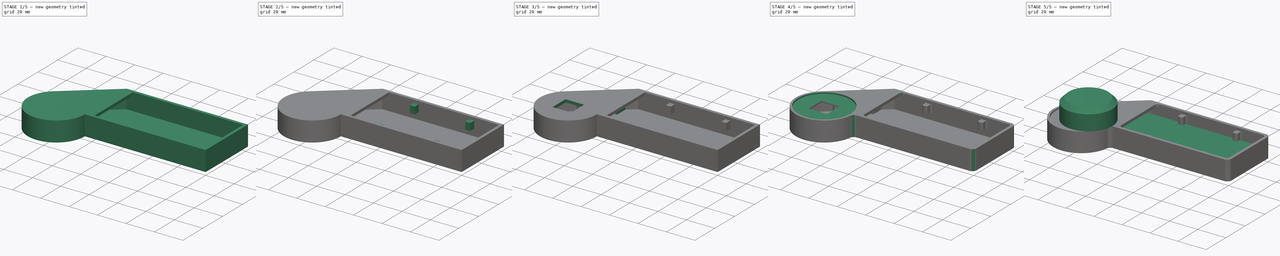
[diagram: build sequence overview — one tinted view per stage of 5, left to right]
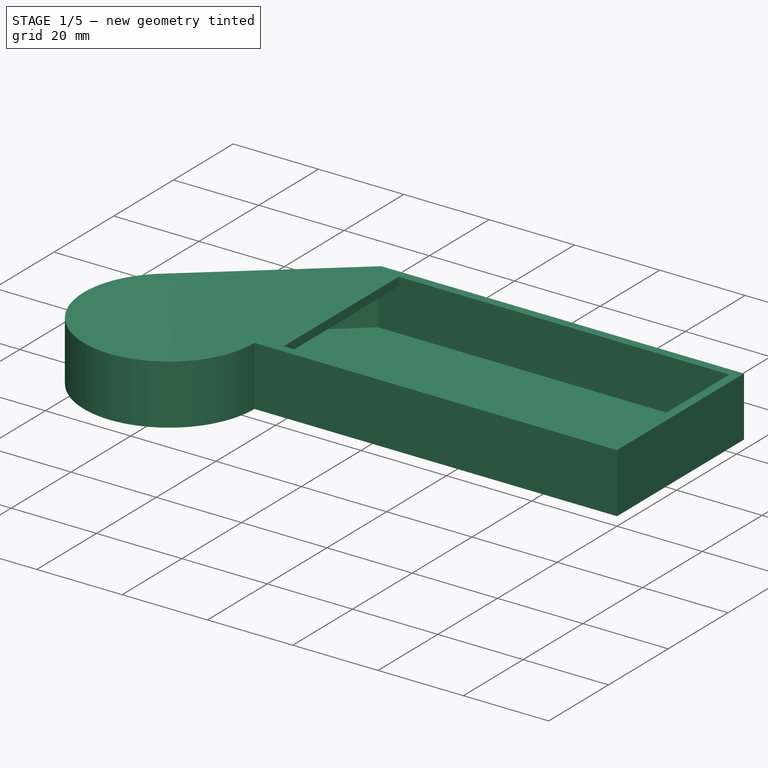
[diagram: stage 1 of 5 — iso view after this stage's code; geometry added in this stage tinted green]
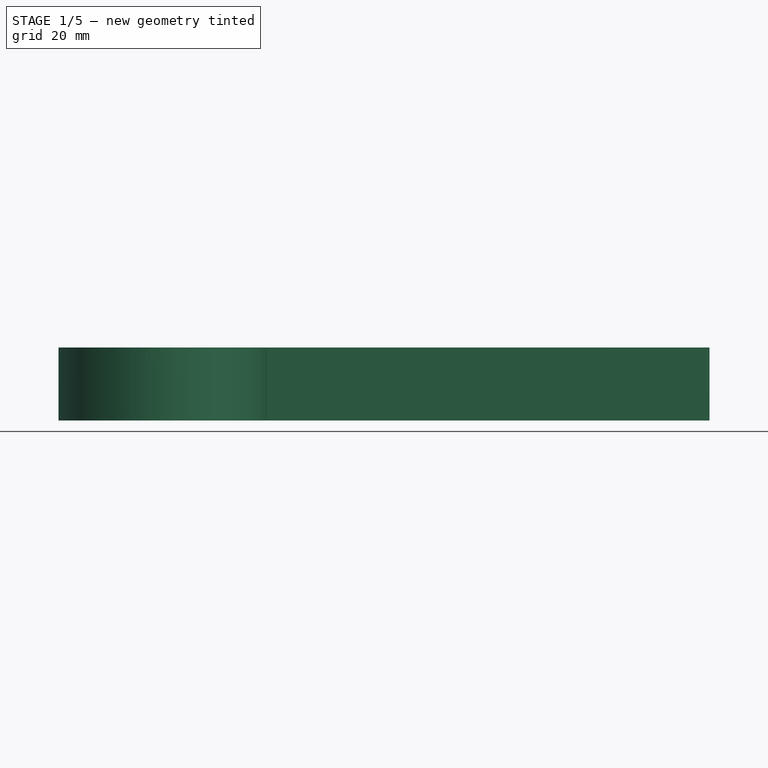
[diagram: stage 1 of 5 — front view after this stage's code; geometry added in this stage tinted green]
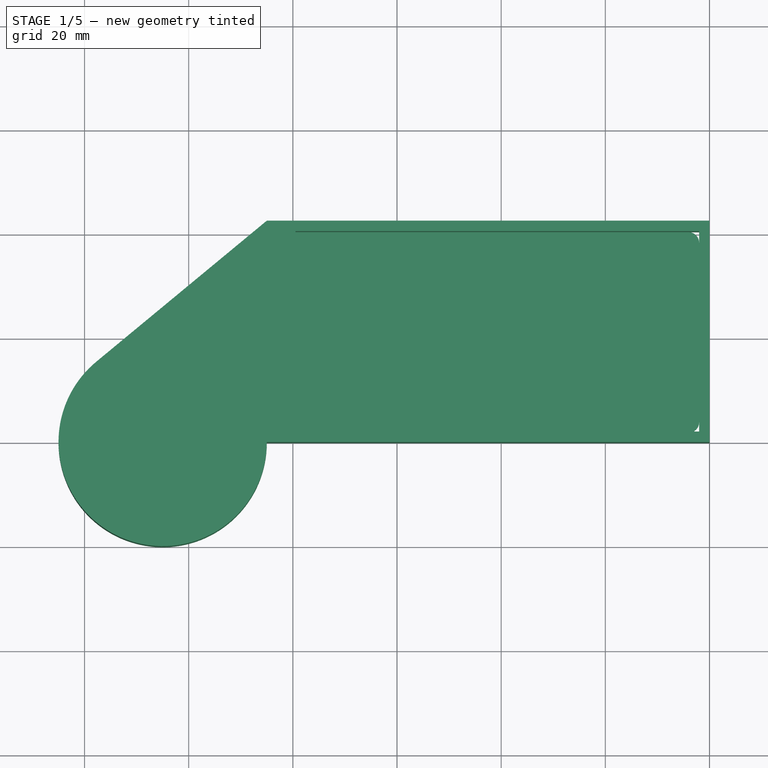
[diagram: stage 1 of 5 — top view after this stage's code; geometry added in this stage tinted green]
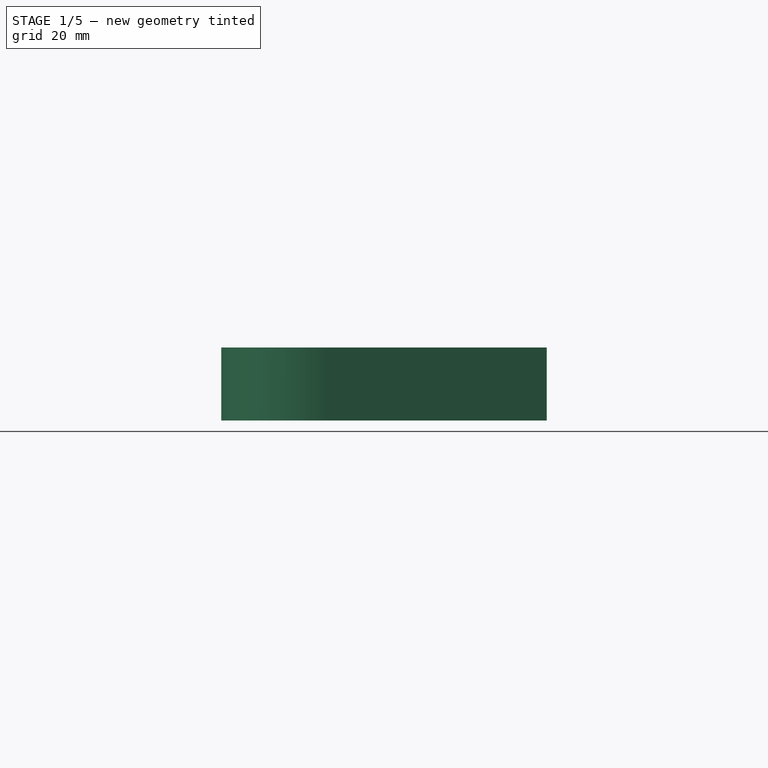
[diagram: stage 1 of 5 — right view after this stage's code; geometry added in this stage tinted green]
FCSTD DOCUMENT  (FreeCAD 0.18R4 (GitTag))
Label: solids
License: All rights reserved
LicenseURL: http://en.wikipedia.org/wiki/All_rights_reserved
objects: Part::Feature×17, Sketcher::SketchObject×16, PartDesign::Pad×10, App::Part×8, PartDesign::Fillet×7, PartDesign::Body×4, PartDesign::Pocket×4, App::DocumentObjectGroup×2, PartDesign::Hole×2, PartDesign::ShapeBinder×1, PartDesign::Chamfer×1
note: 78 computed .brp shape members not serialized (recipe doc carries the construction recipe); baked Part::Feature solids carry a one-line shape summary decoded from their .brp

FEATURE [Sketcher::SketchObject] Sketch  label="external-dimensions"
  sketch-geometry (5):
    g0: LineSegment StartX=0 StartY=0 StartZ=0 EndX=0 EndY=42.5 EndZ=0
    g1: LineSegment StartX=0 StartY=42.5 StartZ=0 EndX=-85 EndY=42.5 EndZ=0
    g2: LineSegment StartX=-85 StartY=42.5 StartZ=0 EndX=-117.748 EndY=15.4108 EndZ=0
    g3: LineSegment StartX=0 StartY=0 StartZ=0 EndX=-85 EndY=8.2e-15 EndZ=0
    g4: ArcOfCircle CenterX=-105 CenterY=3.87627e-05 CenterZ=0 NormalX=0 NormalY=0 NormalZ=1 AngleXU=0 Radius=20 StartAngle=2.26191 EndAngle=6.28318
  constraints (14):
    c: Coincident(g0,g-1)
    c: PointOnObject(g0,g-2)
    c: Horizontal(g1)
    c: Coincident(g2,g1)
    c: Coincident(g3,g0)
    c: PointOnObject(g3,g-1)
    c: Tangent(g2,g4) = -1.5708
    c: DistanceY(g0,g0) = 42.5
    c: Coincident(g1,g0)
    c: Radius(g4) = 20
    c: DistanceX(g3,g3) = 85
    c: Coincident(g3,g4)
    c: DistanceX(g4,g0) = 105
    c: Equal(g1,g3)
FEATURE [PartDesign::Pad] Pad
  Length = 14
  Length2 = 100
  Profile = -> Sketch
  Type = 0
FEATURE [PartDesign::Body] Body001  label="pcb"
  Group = -> [Sketch009,Pad001]
  Origin = -> Origin001
  Tip = -> Pad001
FEATURE [Sketcher::SketchObject] Sketch012  label="external-dim-lid"
  MapMode = 5
  Placement = pos=(0,0,0) rot=(1,0,0;3.14159rad)
  sketch-geometry (6):
    g0: ArcOfCircle CenterX=-105 CenterY=0 CenterZ=0 NormalX=0 NormalY=0 NormalZ=1 AngleXU=0 Radius=18 StartAngle=0 EndAngle=4.01426
    g1: LineSegment StartX=-84.28 StartY=-40.5 StartZ=0 EndX=-2 EndY=-40.5 EndZ=0
    g2: LineSegment StartX=-2 StartY=-2 StartZ=0 EndX=-2 EndY=-40.5 EndZ=0
    g3: LineSegment StartX=-2 StartY=-2 StartZ=0 EndX=-87 EndY=-2 EndZ=0
    g4: LineSegment StartX=-87 StartY=-2 StartZ=0 EndX=-87 EndY=0 EndZ=0
    g5: LineSegment StartX=-116.57 StartY=-13.7888 StartZ=0 EndX=-84.28 EndY=-40.5 EndZ=0
  constraints (19):
    c: PointOnObject(g0,g-1)
    c: Horizontal(g1)
    c: Vertical(g2)
    c: DistanceY(g2,g-1) = 40.5
    c: Radius(g0) = 18
    c: DistanceX(g0,g-1) = 105
    c: Coincident(g1,g2)
    c: DistanceX(g2,g-1) = 2
    c: DistanceY(g2,g-1) = 2
    c: Coincident(g3,g2)
    c: Horizontal(g3)
    c: Coincident(g4,g3)
    c: Coincident(g4,g0)
    c: Vertical(g4)
    c: DistanceY(g4,g4) = 2
    c: Coincident(g5,g0)
    c: Coincident(g5,g1)
    c: DistanceX(g1,g1) = 82.28
    c: Angle(g0) = 4.01426
FEATURE [PartDesign::Pad] Pad002
  Length = 2
  Length2 = 100
  Placement = pos=(0,0,0) rot=(1,0,0;3.14159rad)
  Profile = -> Sketch012
  Reversed = true
  Type = 0
FEATURE [PartDesign::Body] Body003  label="knob"
  Group = -> [CopyPocket008,Sketch017,Pad003,Chamfer]
  Origin = -> Origin003
  Placement = pos=(0,0,0.5) rot=(0,0,1;0rad)
  Tip = -> Chamfer
FEATURE [Part::Feature] Part__Feature017  label="kc_001"
  Placement = pos=(-19.55,1.46,17.3) rot=(1,0,0;1.5708rad)
  shape: bbox 18.17 x 18.13 x 12.8 mm, 52 faces (baked)
FEATURE [Part::Feature] Part__Feature032  label="kc_002"
  Placement = pos=(-39.05,1.46,17.3) rot=(1,0,0;1.5708rad)
  shape: bbox 18.17 x 18.13 x 12.8 mm, 52 faces (baked)
FEATURE [Part::Feature] Part__Feature033  label="kc_003"
  Placement = pos=(-58.55,1.46,17.3) rot=(1,0,0;1.5708rad)
  shape: bbox 18.17 x 18.13 x 12.8 mm, 52 faces (baked)
FEATURE [Part::Feature] Part__Feature034  label="kc_004"
  Placement = pos=(-78.05,1.46,17.3) rot=(1,0,0;1.5708rad)
  shape: bbox 18.17 x 18.13 x 12.8 mm, 52 faces (baked)
FEATURE [Part::Feature] Part__Feature035  label="kc_005"
  Placement = pos=(-19.55,20.96,17.3) rot=(1,0,0;1.5708rad)
  shape: bbox 18.17 x 18.13 x 12.8 mm, 52 faces (baked)
FEATURE [Part::Feature] Part__Feature036  label="kc_006"
  Placement = pos=(-39.05,20.96,17.3) rot=(1,0,0;1.5708rad)
  shape: bbox 18.17 x 18.13 x 12.8 mm, 52 faces (baked)
FEATURE [Part::Feature] Part__Feature037  label="kc_007"
  Placement = pos=(-58.55,20.96,17.3) rot=(1,0,0;1.5708rad)
  shape: bbox 18.17 x 18.13 x 12.8 mm, 52 faces (baked)
FEATURE [Part::Feature] Part__Feature038  label="kc_008"
  Placement = pos=(-78.05,20.96,17.3) rot=(1,0,0;1.5708rad)
  shape: bbox 18.17 x 18.13 x 12.8 mm, 52 faces (baked)
FEATURE [App::DocumentObjectGroup] Group001  label="keycaps"
  Group = -> [Part__Feature017,Part__Feature032,Part__Feature033,Part__Feature034,Part__Feature035,Part__Feature036,Part__Feature037,Part__Feature038]
FEATURE [Part::Feature] Part__Feature039  label="cherry_mx_01"
  Placement = pos=(-10.5074,10.486,12.8) rot=(1,0,0;1.5708rad)
  shape: bbox 15.64 x 16.33 x 17.85 mm, 92 faces (baked)
FEATURE [App::Part] ASSEMBLY  label="sw_001"
  Group = -> [Part__Feature039]
  Origin = -> Origin012
FEATURE [Part::Feature] Part__Feature040  label="cherry_mx_002"
  Placement = pos=(-10.5074,29.986,12.8) rot=(1,0,0;1.5708rad)
  shape: bbox 15.64 x 16.33 x 17.85 mm, 92 faces (baked)
FEATURE [App::Part] ASSEMBLY001  label="sw_002"
  Group = -> [Part__Feature040]
  Origin = -> Origin013
FEATURE [Part::Feature] Part__Feature041  label="cherry_mx_003"
  Placement = pos=(-30.0074,10.486,12.8) rot=(1,0,0;1.5708rad)
  shape: bbox 15.64 x 16.33 x 17.85 mm, 92 faces (baked)
FEATURE [App::Part] ASSEMBLY002  label="sw_003"
  Group = -> [Part__Feature041]
  Origin = -> Origin014
FEATURE [Part::Feature] Part__Feature042  label="cherry_mx_004"
  Placement = pos=(-49.5074,10.486,12.8) rot=(1,0,0;1.5708rad)
  shape: bbox 15.64 x 16.33 x 17.85 mm, 92 faces (baked)
FEATURE [App::Part] ASSEMBLY003  label="sw_004"
  Group = -> [Part__Feature042]
  Origin = -> Origin015
FEATURE [Part::Feature] Part__Feature043  label="cherry_mx_005"
  Placement = pos=(-69.0074,10.486,12.8) rot=(1,0,0;1.5708rad)
  shape: bbox 15.64 x 16.33 x 17.85 mm, 92 faces (baked)
FEATURE [App::Part] ASSEMBLY004  label="sw_005"
  Group = -> [Part__Feature043]
  Origin = -> Origin016
FEATURE [Part::Feature] Part__Feature044  label="cherry_mx_006"
  Placement = pos=(-30.0074,29.986,12.8) rot=(1,0,0;1.5708rad)
  shape: bbox 15.64 x 16.33 x 17.85 mm, 92 faces (baked)
FEATURE [App::Part] ASSEMBLY005  label="sw_006"
  Group = -> [Part__Feature044]
  Origin = -> Origin017
FEATURE [Part::Feature] Part__Feature045  label="cherry_mx_007"
  Placement = pos=(-49.5074,29.986,12.8) rot=(1,0,0;1.5708rad)
  shape: bbox 15.64 x 16.33 x 17.85 mm, 92 faces (baked)
FEATURE [App::Part] ASSEMBLY006  label="sw_007"
  Group = -> [Part__Feature045]
  Origin = -> Origin018
FEATURE [Part::Feature] Part__Feature046  label="cherry_mx_008"
  Placement = pos=(-69.0074,29.986,12.8) rot=(1,0,0;1.5708rad)
  shape: bbox 15.64 x 16.33 x 17.85 mm, 92 faces (baked)
FEATURE [App::Part] ASSEMBLY007  label="sw_008"
  Group = -> [Part__Feature046]
  Origin = -> Origin019
FEATURE [App::DocumentObjectGroup] Group  label="switches"
  Group = -> [ASSEMBLY,ASSEMBLY001,ASSEMBLY002,ASSEMBLY003,ASSEMBLY004,ASSEMBLY005,ASSEMBLY006,ASSEMBLY007]
FEATURE [Sketcher::SketchObject] Sketch019  label="bottom-pocket"
  MapMode = 5
  Placement = pos=(0,0,0) rot=(1,0,0;3.14159rad)
  Support = -> [Pad]
  sketch-geometry (6):
    g0: LineSegment StartX=-116.57 StartY=-13.7888 StartZ=0 EndX=-84.28 EndY=-40.5 EndZ=0
    g1: LineSegment StartX=-84.28 StartY=-40.5 StartZ=0 EndX=-2 EndY=-40.5 EndZ=0
    g2: LineSegment StartX=-2 StartY=-40.5 StartZ=0 EndX=-2 EndY=-2 EndZ=0
    g3: LineSegment StartX=-2 StartY=-2 StartZ=0 EndX=-87 EndY=-2 EndZ=0
    g4: LineSegment StartX=-87 StartY=-2 StartZ=0 EndX=-87 EndY=0 EndZ=0
    g5: ArcOfCircle CenterX=-105 CenterY=0 CenterZ=0 NormalX=0 NormalY=0 NormalZ=1 AngleXU=0 Radius=18 StartAngle=0 EndAngle=4.01426
  constraints (19):
    c: Horizontal(g1)
    c: Coincident(g2,g1)
    c: Vertical(g2)
    c: Coincident(g3,g2)
    c: Horizontal(g3)
    c: Coincident(g4,g3)
    c: DistanceY(g2,g2) = 38.5
    c: DistanceX(g2,g-1) = 2
    c: DistanceY(g2,g-1) = 2
    c: Vertical(g4)
    c: Coincident(g1,g0)
    c: DistanceX(g1,g1) = 82.28
    c: Coincident(g5,g4)
    c: Coincident(g5,g0)
    c: Radius(g5) = 18
    c: DistanceX(g3,g3) = 85
    c: DistanceY(g4,g4) = 2
    c: PointOnObject(g5,g-1)
    c: Angle(g5) = 4.01426
FEATURE [PartDesign::Pocket] Pocket
  BaseFeature = -> Pad
  Length = 12
  Length2 = 100
  Profile = -> Sketch019
  Type = 0
FEATURE [Sketcher::SketchObject] Sketch020  label="top-pocket"
  MapMode = 5
  Placement = pos=(0,0,14) rot=(0,0,1;0rad)
  Support = -> [Pocket]
  sketch-geometry (4):
    g0: LineSegment StartX=-79.5 StartY=40.5 StartZ=0 EndX=-2 EndY=40.5 EndZ=0
    g1: LineSegment StartX=-2 StartY=40.5 StartZ=0 EndX=-2 EndY=2 EndZ=0
    g2: LineSegment StartX=-2 StartY=2 StartZ=0 EndX=-79.5 EndY=2 EndZ=0
    g3: LineSegment StartX=-79.5 StartY=2 StartZ=0 EndX=-79.5 EndY=40.5 EndZ=0
  constraints (12):
    c: Coincident(g0,g1)
    c: Coincident(g1,g2)
    c: Coincident(g2,g3)
    c: Coincident(g3,g0)
    c: Horizontal(g0)
    c: Horizontal(g2)
    c: Vertical(g1)
    c: Vertical(g3)
    c: DistanceY(g1,g1) = 38.5
    c: DistanceY(g-1,g1) = 2
    c: DistanceX(g1,g-1) = 2
    c: DistanceX(g0,g0) = 77.5
FEATURE [PartDesign::Pocket] Pocket010
  BaseFeature = -> Pocket
  Length = 2
  Length2 = 100
  Profile = -> Sketch020
  Type = 0
FEATURE [PartDesign::Body] Body  label="enclosure"
  Group = -> [Sketch,Pad,Sketch019,Pocket,Sketch020,Pocket010,Sketch021,Pad004,Sketch022,Pad005,Sketch023,Pad006,Sketch024,Pad007,Sketch025,Pad008,Sketch026,Pad009,Sketch027,Pocket011,Sketch028,Hole,Sketch029,Hole001,Sketch030,Pocket012,Fillet,Fillet001,Fillet002,Fillet003,Fillet004,Fillet005]
  Origin = -> Origin
  Tip = -> Fillet005
FEATURE [PartDesign::Fillet] Fillet006
  Base = -> Pad002 [Edge1,Edge14,Edge11]
  BaseFeature = -> Pad002
  Placement = pos=(0,0,0) rot=(1,0,0;3.14159rad)
  Radius = 2
FEATURE [PartDesign::Body] Body002  label="lid"
  Group = -> [Sketch012,Pad002,Fillet006]
  Origin = -> Origin002
  Tip = -> Fillet006
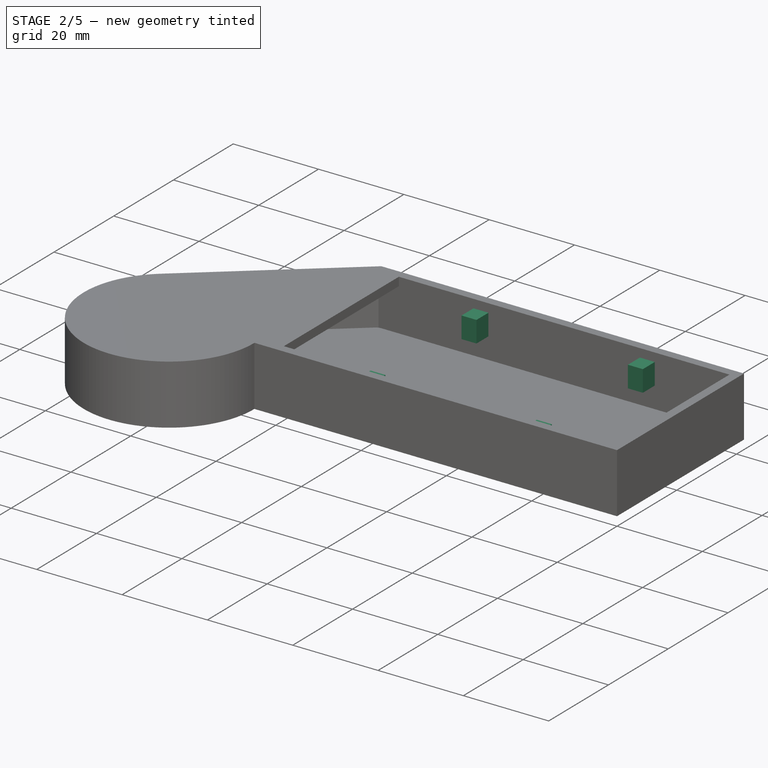
[diagram: stage 2 of 5 — iso view after this stage's code; geometry added in this stage tinted green]
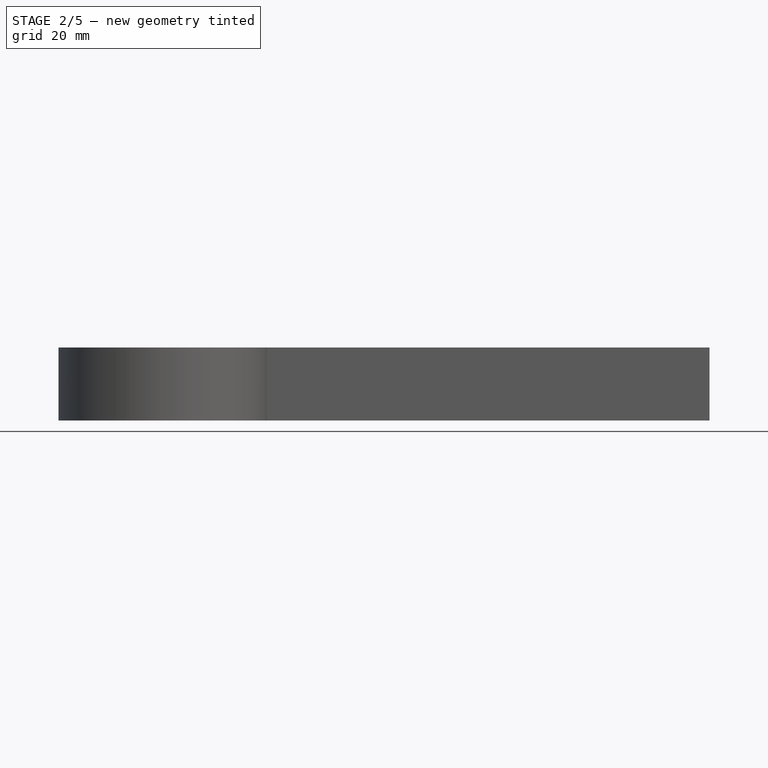
[diagram: stage 2 of 5 — front view after this stage's code; geometry added in this stage tinted green]
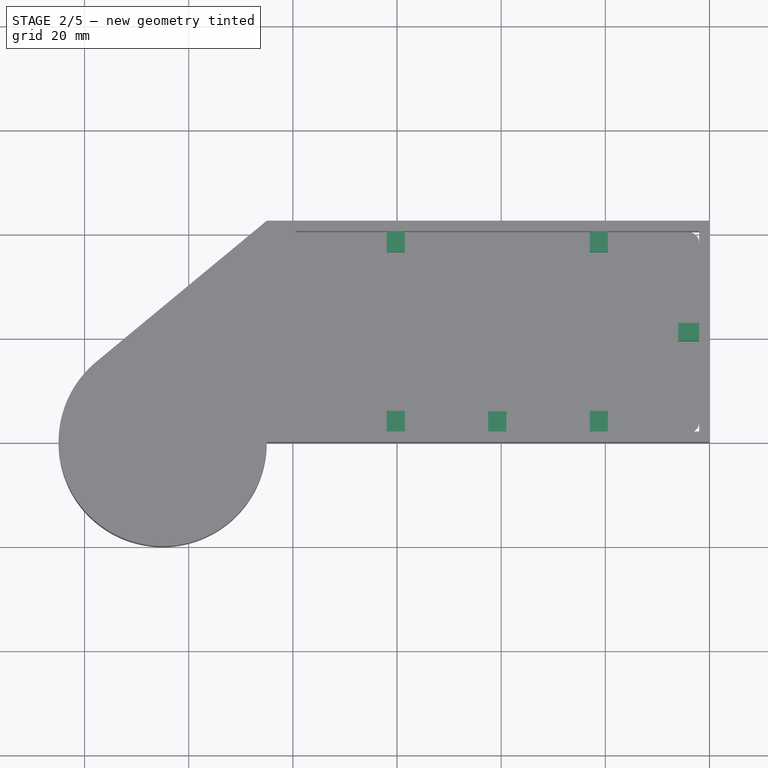
[diagram: stage 2 of 5 — top view after this stage's code; geometry added in this stage tinted green]
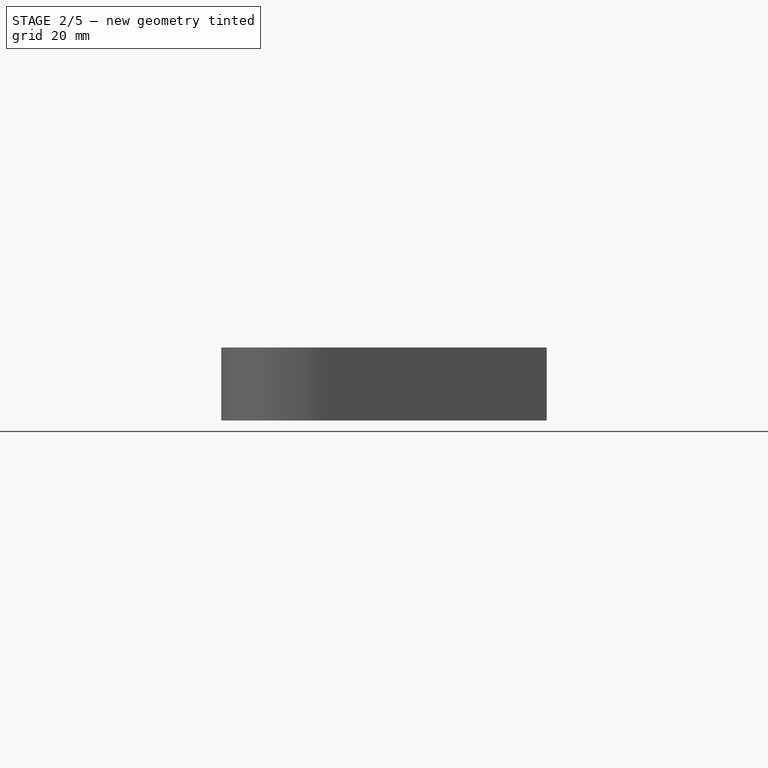
[diagram: stage 2 of 5 — right view after this stage's code; geometry added in this stage tinted green]
FEATURE [Sketcher::SketchObject] Sketch021  label="supports-north"
  MapMode = 5
  Placement = pos=(0,40.5,0) rot=(1,0,0;1.5708rad)
  Support = -> [Pocket010]
  sketch-geometry (8):
    g0: LineSegment StartX=-23 StartY=12 StartZ=0 EndX=-19.5 EndY=12 EndZ=0
    g1: LineSegment StartX=-19.5 StartY=12 StartZ=0 EndX=-19.5 EndY=7 EndZ=0
    g2: LineSegment StartX=-19.5 StartY=7 StartZ=0 EndX=-23 EndY=7 EndZ=0
    g3: LineSegment StartX=-23 StartY=7 StartZ=0 EndX=-23 EndY=12 EndZ=0
    g4: LineSegment StartX=-62 StartY=12 StartZ=0 EndX=-58.5 EndY=12 EndZ=0
    g5: LineSegment StartX=-58.5 StartY=12 StartZ=0 EndX=-58.5 EndY=7 EndZ=0
    g6: LineSegment StartX=-58.5 StartY=7 StartZ=0 EndX=-62 EndY=7 EndZ=0
    g7: LineSegment StartX=-62 StartY=7 StartZ=0 EndX=-62 EndY=12 EndZ=0
  constraints (24):
    c: Coincident(g0,g1)
    c: Coincident(g1,g2)
    c: Coincident(g2,g3)
    c: Coincident(g3,g0)
    c: Horizontal(g0)
    c: Horizontal(g2)
    c: Vertical(g1)
    c: Vertical(g3)
    c: Coincident(g4,g5)
    c: Coincident(g5,g6)
    c: Coincident(g6,g7)
    c: Coincident(g7,g4)
    c: Horizontal(g4)
    c: Horizontal(g6)
    c: Vertical(g5)
    c: Vertical(g7)
    c: Equal(g1,g5)
    c: Equal(g6,g2)
    c: DistanceY(g1,g1) = 5
    c: DistanceX(g2,g2) = 3.5
    c: DistanceX(g1,g-1) = 19.5
    c: DistanceX(g5,g-1) = 58.5
    c: DistanceY(g-1,g1) = 7
    c: DistanceY(g-1,g5) = 7
FEATURE [PartDesign::Pad] Pad004
  BaseFeature = -> Pocket010
  Length = 4
  Length2 = 100
  Profile = -> Sketch021
  Type = 0
FEATURE [Sketcher::SketchObject] Sketch022  label="supports-south"
  MapMode = 5
  Placement = pos=(0,2,0) rot=(0,0.707107,0.707107;3.14159rad)
  Support = -> [Pad004]
  sketch-geometry (12):
    g0: LineSegment StartX=19.5 StartY=12 StartZ=0 EndX=23 EndY=12 EndZ=0
    g1: LineSegment StartX=23 StartY=12 StartZ=0 EndX=23 EndY=7 EndZ=0
    g2: LineSegment StartX=23 StartY=7 StartZ=0 EndX=19.5 EndY=7 EndZ=0
    g3: LineSegment StartX=19.5 StartY=7 StartZ=0 EndX=19.5 EndY=12 EndZ=0
    g4: LineSegment StartX=58.5 StartY=12 StartZ=0 EndX=62 EndY=12 EndZ=0
    g5: LineSegment StartX=62 StartY=12 StartZ=0 EndX=62 EndY=7 EndZ=0
    g6: LineSegment StartX=62 StartY=7 StartZ=0 EndX=58.5 EndY=7 EndZ=0
    g7: LineSegment StartX=58.5 StartY=7 StartZ=0 EndX=58.5 EndY=12 EndZ=0
    g8: LineSegment StartX=39 StartY=7 StartZ=0 EndX=42.5 EndY=7 EndZ=0
    g9: LineSegment StartX=42.5 StartY=7 StartZ=0 EndX=42.5 EndY=2 EndZ=0
    g10: LineSegment StartX=42.5 StartY=2 StartZ=0 EndX=39 EndY=2 EndZ=0
    g11: LineSegment StartX=39 StartY=2 StartZ=0 EndX=39 EndY=7 EndZ=0
  constraints (36):
    c: Coincident(g0,g1)
    c: Coincident(g1,g2)
    c: Coincident(g2,g3)
    c: Coincident(g3,g0)
    c: Horizontal(g0)
    c: Horizontal(g2)
    c: Vertical(g1)
    c: Vertical(g3)
    c: Coincident(g4,g5)
    c: Coincident(g5,g6)
    c: Coincident(g6,g7)
    c: Coincident(g7,g4)
    c: Horizontal(g4)
    c: Horizontal(g6)
    c: Vertical(g5)
    c: Vertical(g7)
    c: Coincident(g8,g9)
    c: Coincident(g9,g10)
    c: Coincident(g10,g11)
    c: Coincident(g11,g8)
    c: Horizontal(g8)
    c: Horizontal(g10)
    c: Vertical(g9)
    c: Vertical(g11)
    c: Equal(g3,g11)
    c: Equal(g11,g7)
    c: Equal(g2,g10)
    c: Equal(g10,g6)
    c: DistanceY(g3,g3) = 5
    c: DistanceX(g2,g2) = 3.5
    c: DistanceX(g-1,g2) = 19.5
    c: DistanceY(g-1,g2) = 7
    c: DistanceY(g-1,g10) = 2
    c: DistanceX(g-1,g10) = 39
    c: DistanceX(g-1,g6) = 58.5
    c: DistanceY(g6) = 7
FEATURE [PartDesign::Pad] Pad005
  BaseFeature = -> Pad004
  Length = 4
  Length2 = 100
  Profile = -> Sketch022
  Type = 0
FEATURE [Sketcher::SketchObject] Sketch023  label="supports-east"
  MapMode = 5
  Placement = pos=(-2,0,0) rot=(0.57735,-0.57735,-0.57735;2.0944rad)
  Support = -> [Pad005]
  sketch-geometry (4):
    g0: LineSegment StartX=-23 StartY=7 StartZ=0 EndX=-19.5 EndY=7 EndZ=0
    g1: LineSegment StartX=-19.5 StartY=7 StartZ=0 EndX=-19.5 EndY=2 EndZ=0
    g2: LineSegment StartX=-19.5 StartY=2 StartZ=0 EndX=-23 EndY=2 EndZ=0
    g3: LineSegment StartX=-23 StartY=2 StartZ=0 EndX=-23 EndY=7 EndZ=0
  constraints (12):
    c: Coincident(g0,g1)
    c: Coincident(g1,g2)
    c: Coincident(g2,g3)
    c: Coincident(g3,g0)
    c: Horizontal(g0)
    c: Horizontal(g2)
    c: Vertical(g1)
    c: Vertical(g3)
    c: DistanceX(g2,g2) = 3.5
    c: DistanceY(g1,g1) = 5
    c: DistanceY(g-1,g1) = 2
    c: DistanceX(g1,g-1) = 19.5
FEATURE [PartDesign::Pad] Pad006
  BaseFeature = -> Pad005
  Length = 4
  Length2 = 100
  Profile = -> Sketch023
  Type = 0
FEATURE [Sketcher::SketchObject] Sketch024  label="supports-inside-pcb"
  MapMode = 5
  Placement = pos=(0,0,12) rot=(1,0,0;3.14159rad)
  Support = -> [Pad006]
  sketch-geometry (5):
    g0: Circle CenterX=-93 CenterY=0 CenterZ=0 NormalX=0 NormalY=0 NormalZ=1 AngleXU=0 Radius=2
    g1: Circle CenterX=-117 CenterY=0 CenterZ=0 NormalX=0 NormalY=0 NormalZ=1 AngleXU=0 Radius=2
    g2: Circle CenterX=-105 CenterY=-12 CenterZ=0 NormalX=0 NormalY=0 NormalZ=1 AngleXU=0 Radius=2
    g3: ArcOfCircle CenterX=-105 CenterY=0 CenterZ=0 NormalX=0 NormalY=0 NormalZ=1 AngleXU=0 Radius=18 StartAngle=0.429775 EndAngle=2.71182
    g4: LineSegment StartX=-121.363 StartY=7.5 StartZ=0 EndX=-88.6369 EndY=7.5 EndZ=0
  constraints (15):
    c: PointOnObject(g0,g-1)
    c: Equal(g2,g1)
    c: Equal(g1,g0)
    c: Coincident(g4,g3)
    c: Coincident(g4,g3)
    c: Horizontal(g4)
    c: Radius(g3) = 18
    c: DistanceY(g3,g3) = 7.5
    c: DistanceX(g3,g-1) = 105
    c: Symmetric(g0,g1,g3)
    c: PointOnObject(g3,g-1)
    c: Radius(g1) = 2
    c: DistanceX(g1,g3) = 12
    c: DistanceY(g2,g3) = 12
    c: Vertical(g2,g3)
FEATURE [PartDesign::Pad] Pad007
  BaseFeature = -> Pad006
  Length = 5
  Length2 = 100
  Profile = -> Sketch024
  Type = 0
FEATURE [Sketcher::SketchObject] Sketch025  label="support-lid-south"
  MapMode = 5
  Placement = pos=(0,0,7) rot=(1,0,0;3.14159rad)
  Support = -> [Pad007]
  sketch-geometry (2):
    g0: ArcOfCircle CenterX=-105 CenterY=0 CenterZ=0 NormalX=0 NormalY=0 NormalZ=1 AngleXU=0 Radius=18 StartAngle=0.80701 EndAngle=2.33458
    g1: LineSegment StartX=-117.45 StartY=13 StartZ=0 EndX=-92.5501 EndY=13 EndZ=0
  constraints (7):
    c: PointOnObject(g0,g-1)
    c: Coincident(g1,g0)
    c: Coincident(g1,g0)
    c: Horizontal(g1)
    c: Radius(g0) = 18
    c: DistanceX(g0,g-1) = 105
    c: DistanceY(g0,g0) = 13
FEATURE [PartDesign::Pad] Pad008
  BaseFeature = -> Pad007
  Length = 5
  Length2 = 100
  Profile = -> Sketch025
  Type = 0
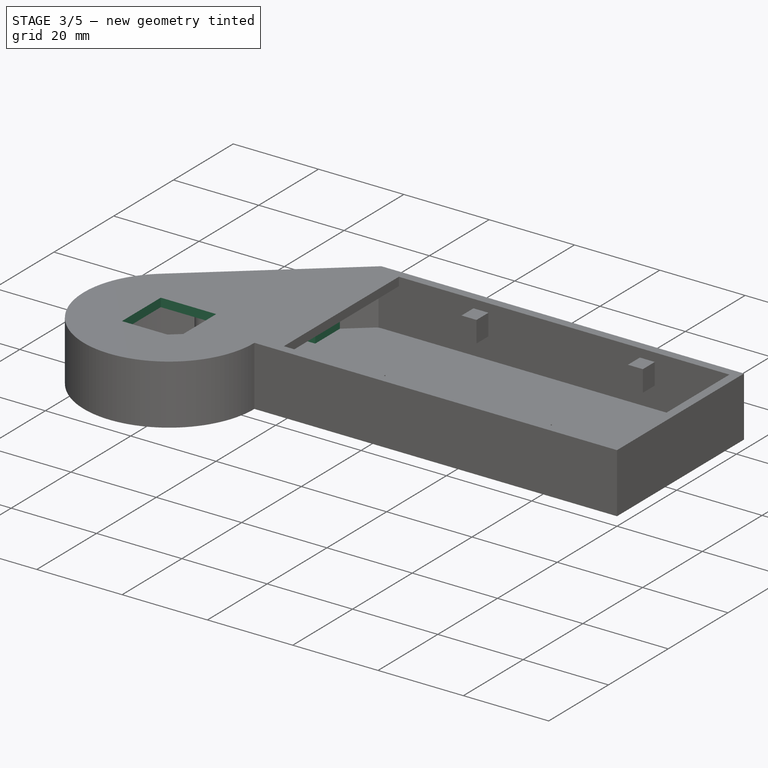
[diagram: stage 3 of 5 — iso view after this stage's code; geometry added in this stage tinted green]
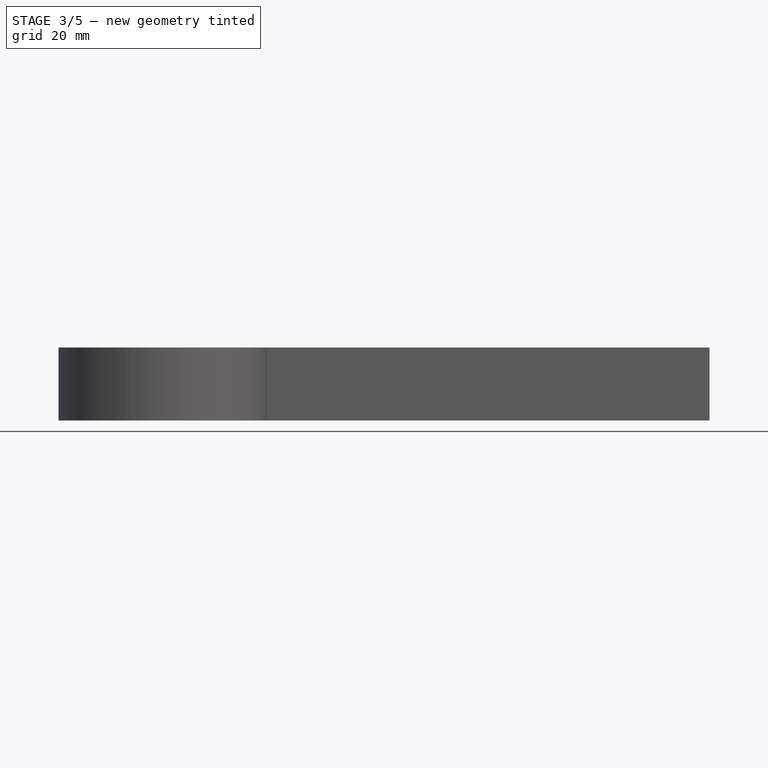
[diagram: stage 3 of 5 — front view after this stage's code; geometry added in this stage tinted green]
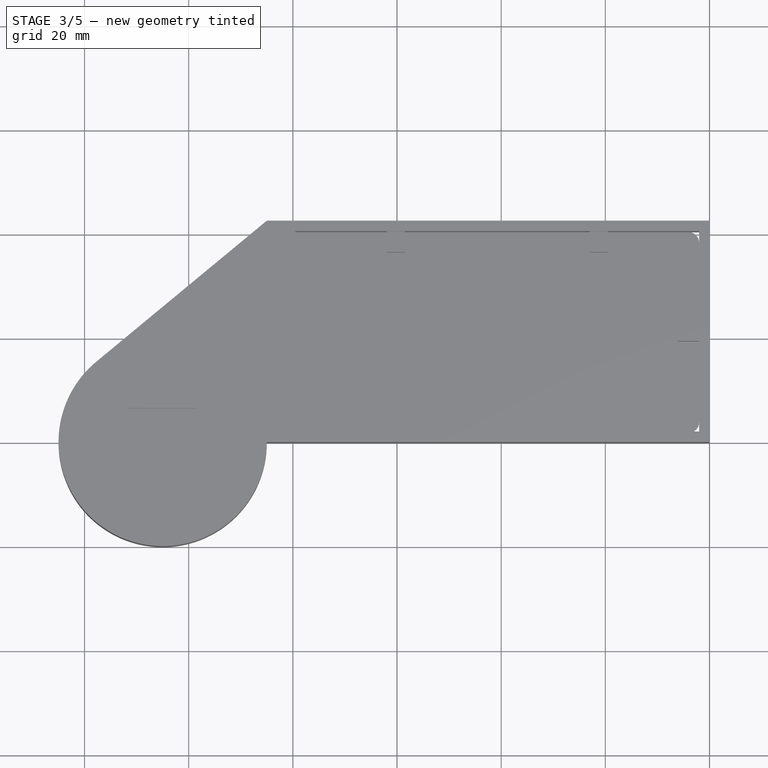
[diagram: stage 3 of 5 — top view after this stage's code; geometry added in this stage tinted green]
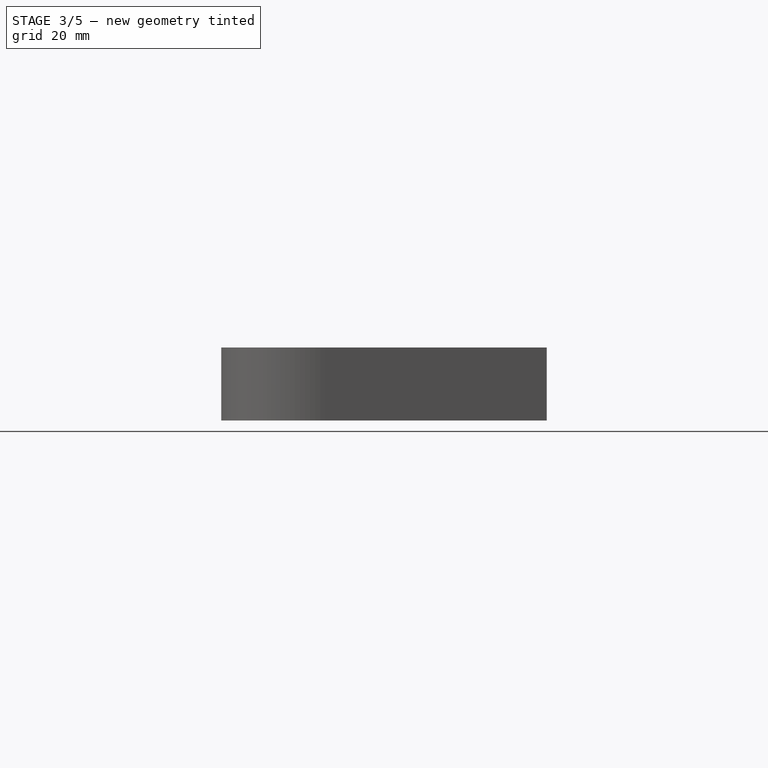
[diagram: stage 3 of 5 — right view after this stage's code; geometry added in this stage tinted green]
FEATURE [Sketcher::SketchObject] Sketch026  label="support-lid-north"
  MapMode = 5
  Placement = pos=(0,0,12) rot=(1,0,0;3.14159rad)
  Support = -> [Pad008]
  sketch-geometry (3):
    g0: LineSegment StartX=-100 StartY=-27.5 StartZ=0 EndX=-90 EndY=-27.5 EndZ=0
    g1: LineSegment StartX=-90 StartY=-27.5 StartZ=0 EndX=-90 EndY=-35.77 EndZ=0
    g2: LineSegment StartX=-90 StartY=-35.77 StartZ=0 EndX=-100 EndY=-27.5 EndZ=0
  constraints (9):
    c: Horizontal(g0)
    c: Coincident(g1,g0)
    c: Vertical(g1)
    c: Coincident(g2,g1)
    c: Coincident(g2,g0)
    c: DistanceX(g0,g0) = 10
    c: DistanceX(g0,g-1) = 90
    c: DistanceY(g0,g-1) = 27.5
    c: DistanceY(g1,g1) = 8.27
FEATURE [PartDesign::Pad] Pad009
  BaseFeature = -> Pad008
  Length = 10
  Length2 = 100
  Profile = -> Sketch026
  Type = 0
FEATURE [Sketcher::SketchObject] Sketch027
  MapMode = 5
  Placement = pos=(0,0,12) rot=(1,0,0;3.14159rad)
  Support = -> [Pad009]
  sketch-geometry (4):
    g0: LineSegment StartX=-111.5 StartY=6.5 StartZ=0 EndX=-98.5 EndY=6.5 EndZ=0
    g1: LineSegment StartX=-98.5 StartY=6.5 StartZ=0 EndX=-98.5 EndY=-6.5 EndZ=0
    g2: LineSegment StartX=-98.5 StartY=-6.5 StartZ=0 EndX=-111.5 EndY=-6.5 EndZ=0
    g3: LineSegment StartX=-111.5 StartY=-6.5 StartZ=0 EndX=-111.5 EndY=6.5 EndZ=0
  constraints (11):
    c: Coincident(g0,g1)
    c: Coincident(g1,g2)
    c: Coincident(g2,g3)
    c: Coincident(g3,g0)
    c: Horizontal(g0)
    c: Horizontal(g2)
    c: Vertical(g3)
    c: Equal(g1,g2)
    c: DistanceX(g2,g2) = 13
    c: Symmetric(g1,g0,g-1)
    c: DistanceX(g0,g-1) = 98.5
FEATURE [PartDesign::Pocket] Pocket011
  BaseFeature = -> Pad009
  Length = 2
  Length2 = 100
  Profile = -> Sketch027
  Type = 0
FEATURE [Sketcher::SketchObject] Sketch028
  MapMode = 5
  Placement = pos=(0,1.6e-15,7) rot=(1,0,0;3.14159rad)
  Support = -> [Pocket011]
  sketch-geometry (8):
    g0: Circle CenterX=-60.25 CenterY=-4 CenterZ=0 NormalX=0 NormalY=0 NormalZ=1 AngleXU=0 Radius=0.625
    g1: Circle CenterX=-21.25 CenterY=-4 CenterZ=0 NormalX=0 NormalY=0 NormalZ=1 AngleXU=0 Radius=0.625
    g2: Circle CenterX=-21.25 CenterY=-38.5 CenterZ=0 NormalX=0 NormalY=0 NormalZ=1 AngleXU=0 Radius=0.625
    g3: Circle CenterX=-60.25 CenterY=-38.5 CenterZ=0 NormalX=0 NormalY=0 NormalZ=1 AngleXU=0 Radius=0.625
    g4: Circle CenterX=-105 CenterY=-12 CenterZ=0 NormalX=0 NormalY=0 NormalZ=1 AngleXU=0 Radius=0.625
    g5: Circle CenterX=-93 CenterY=0 CenterZ=0 NormalX=0 NormalY=0 NormalZ=1 AngleXU=0 Radius=0.625
    g6: Circle CenterX=-117 CenterY=0 CenterZ=0 NormalX=0 NormalY=0 NormalZ=1 AngleXU=0 Radius=0.625
    g7: Circle CenterX=-105 CenterY=10 CenterZ=0 NormalX=0 NormalY=0 NormalZ=1 AngleXU=0 Radius=0.625
  constraints (24):
    c: Equal(g2,g1)
    c: Equal(g1,g0)
    c: Equal(g0,g3)
    c: Equal(g3,g4)
    c: Equal(g4,g6)
    c: Equal(g6,g5)
    c: Equal(g5,g7)
    c: Vertical(g2,g1)
    c: Horizontal(g2,g3)
    c: Vertical(g3,g0)
    c: Horizontal(g5,g6)
    c: DistanceX(g1,g-1) = 21.25
    c: DistanceX(g0,g-1) = 60.25
    c: PointOnObject(g6,g-1)
    c: DistanceX(g6,g5) = 24
    c: DistanceX(g5,g-1) = 93
    c: DistanceX(g7,g-1) = 105
    c: DistanceY(g1,g-1) = 4
    c: Horizontal(g0,g1)
    c: DistanceY(g2,g1) = 34.5
    c: Radius(g2) = 0.625
    c: Vertical(g4,g7)
    c: DistanceY(g4,g6) = 12
    c: DistanceY(g6,g7) = 10
FEATURE [PartDesign::Hole] Hole
  BaseFeature = -> Pocket011
  Depth = 4
  DepthType = 0
  Diameter = 1.4
  DrillPoint = 1
  DrillPointAngle = 118
  HoleCutCountersinkAngle = 90
  HoleCutDepth = 0
  HoleCutDiameter = 1.6
  HoleCutType = 0
  ModelActualThread = false
  Profile = -> Sketch028
  Tapered = false
  TaperedAngle = 90
  ThreadAngle = 60
  ThreadClass = 0
  ThreadCutOffInner = 0.0216506
  ThreadCutOffOuter = 0.0433013
  ThreadDirection = 1
  ThreadFit = 0
  ThreadPitch = 0.2
  ThreadSize = 4
  ThreadType = 2
  Threaded = true
FEATURE [Sketcher::SketchObject] Sketch029
  MapMode = 5
  Placement = pos=(0,0,2) rot=(1,0,0;3.14159rad)
  Support = -> [Hole]
  sketch-geometry (4):
    g0: Circle CenterX=-105 CenterY=15 CenterZ=0 NormalX=0 NormalY=0 NormalZ=1 AngleXU=0 Radius=0.625
    g1: Circle CenterX=-93 CenterY=-30 CenterZ=0 NormalX=0 NormalY=0 NormalZ=1 AngleXU=0 Radius=0.625
    g2: Circle CenterX=-40.75 CenterY=-4 CenterZ=0 NormalX=0 NormalY=0 NormalZ=1 AngleXU=0 Radius=0.625
    g3: Circle CenterX=-4 CenterY=-21.25 CenterZ=0 NormalX=0 NormalY=0 NormalZ=1 AngleXU=0 Radius=0.625
  constraints (12):
    c: Equal(g0,g1)
    c: Equal(g1,g2)
    c: Equal(g2,g3)
    c: DistanceX(g0,g-1) = 105
    c: DistanceY(g-1,g0) = 15
    c: DistanceX(g1,g-1) = 93
    c: DistanceY(g1,g-1) = 30
    c: DistanceY(g3,g-1) = 21.25
    c: DistanceX(g3,g-1) = 4
    c: DistanceY(g2,g-1) = 4
    c: DistanceX(g2,g-1) = 40.75
    c: Radius(g1) = 0.625
FEATURE [PartDesign::Hole] Hole001
  BaseFeature = -> Hole
  Depth = 4
  DepthType = 0
  Diameter = 1.4
  DrillPoint = 1
  DrillPointAngle = 118
  HoleCutCountersinkAngle = 90
  HoleCutDepth = 0
  HoleCutDiameter = 1.6
  HoleCutType = 0
  ModelActualThread = false
  Profile = -> Sketch029
  Tapered = false
  TaperedAngle = 90
  ThreadAngle = 60
  ThreadClass = 0
  ThreadCutOffInner = 0.0216506
  ThreadCutOffOuter = 0.0433013
  ThreadDirection = 1
  ThreadFit = 0
  ThreadPitch = 0.2
  ThreadSize = 4
  ThreadType = 2
  Threaded = true
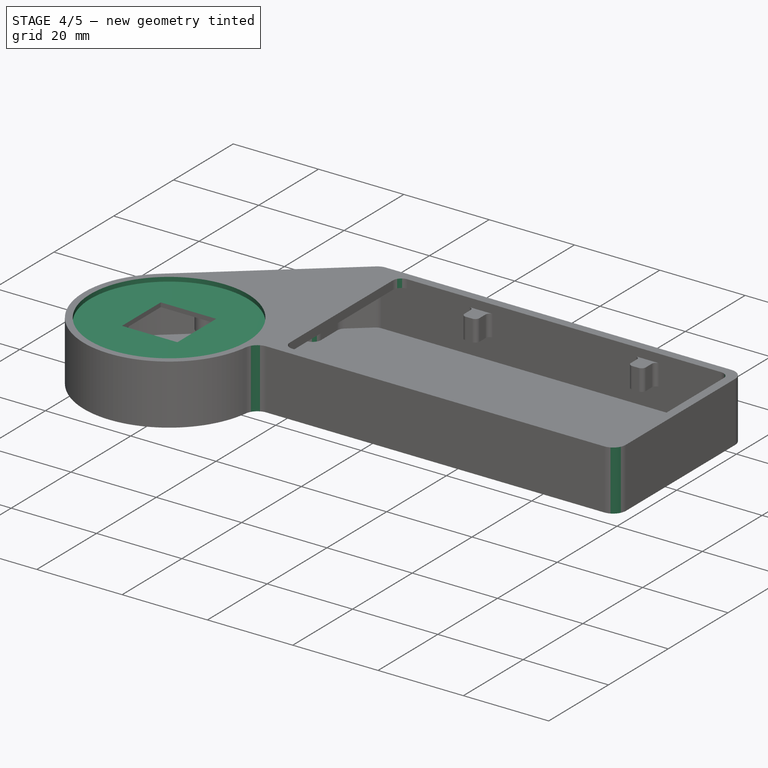
[diagram: stage 4 of 5 — iso view after this stage's code; geometry added in this stage tinted green]
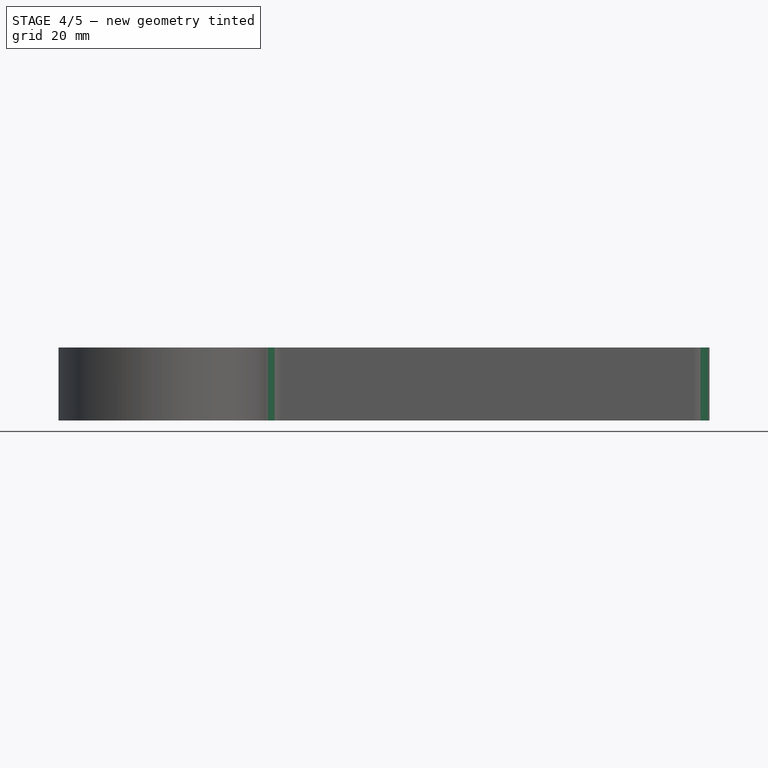
[diagram: stage 4 of 5 — front view after this stage's code; geometry added in this stage tinted green]
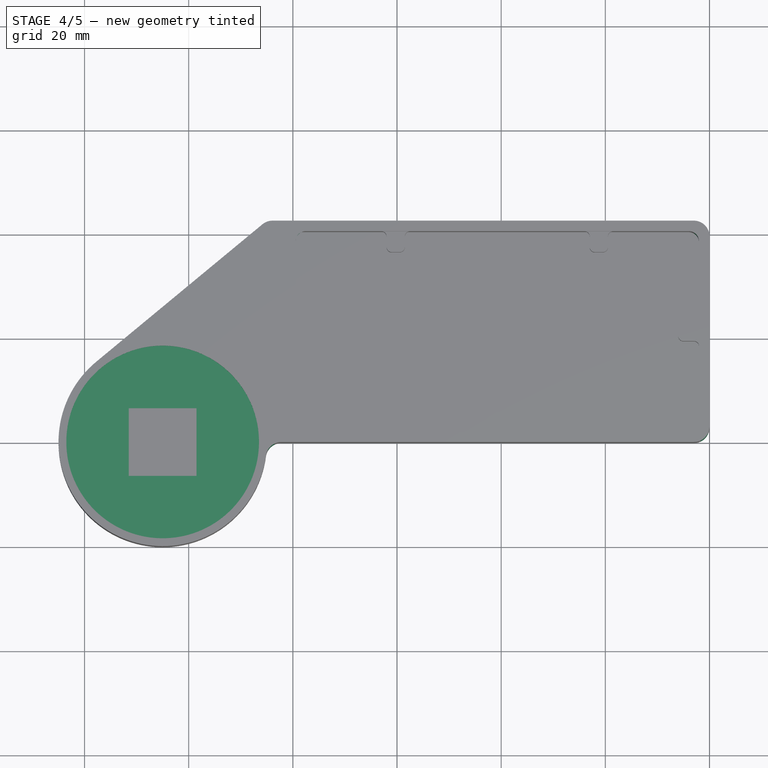
[diagram: stage 4 of 5 — top view after this stage's code; geometry added in this stage tinted green]
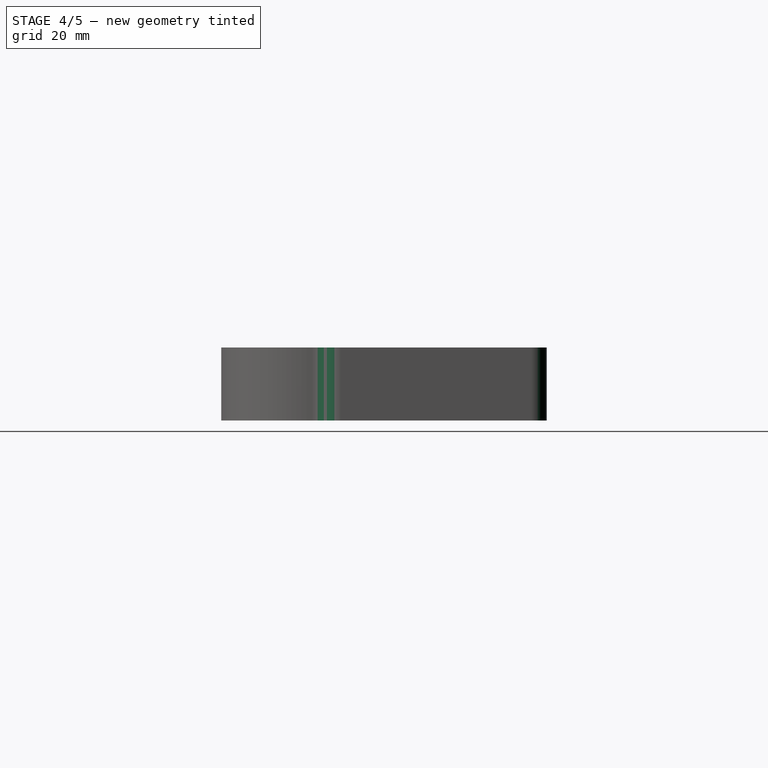
[diagram: stage 4 of 5 — right view after this stage's code; geometry added in this stage tinted green]
FEATURE [Sketcher::SketchObject] Sketch030
  MapMode = 5
  Placement = pos=(0,0,14) rot=(0,0,1;0rad)
  Support = -> [Hole001]
  sketch-geometry (1):
    g0: Circle CenterX=-105 CenterY=0 CenterZ=0 NormalX=0 NormalY=0 NormalZ=1 AngleXU=0 Radius=18.5
  constraints (3):
    c: PointOnObject(g0,g-1)
    c: Radius(g0) = 18.5
    c: DistanceX(g0,g-1) = 105
FEATURE [PartDesign::Pocket] Pocket012
  BaseFeature = -> Hole001
  Length = 1
  Length2 = 100
  Profile = -> Sketch030
  Type = 0
FEATURE [PartDesign::Fillet] Fillet
  Base = -> Pocket012 [Edge1,Edge2,Edge8,Edge5]
  BaseFeature = -> Pocket012
  Radius = 3
FEATURE [PartDesign::Fillet] Fillet001
  Base = -> Fillet [Edge97,Edge94,Edge92,Edge91]
  BaseFeature = -> Fillet
  Radius = 2
FEATURE [PartDesign::Fillet] Fillet002
  Base = -> Fillet001 [Edge26,Edge117,Edge124,Edge30,Edge32,Edge129,Edge134,Edge34,Edge120,Edge111,Edge22,Edge27,Edge72,Edge164,Edge172,Edge170,Edge178,Edge68,Edge66,Edge70,Edge142,Edge147,Edge42,Edge44]
  BaseFeature = -> Fillet001
  Radius = 1
FEATURE [PartDesign::Fillet] Fillet003
  Base = -> Fillet002 [Edge157,Edge151,Edge155,Edge153,Edge159,Edge162,Edge160,Edge163]
  BaseFeature = -> Fillet002
  Radius = 2
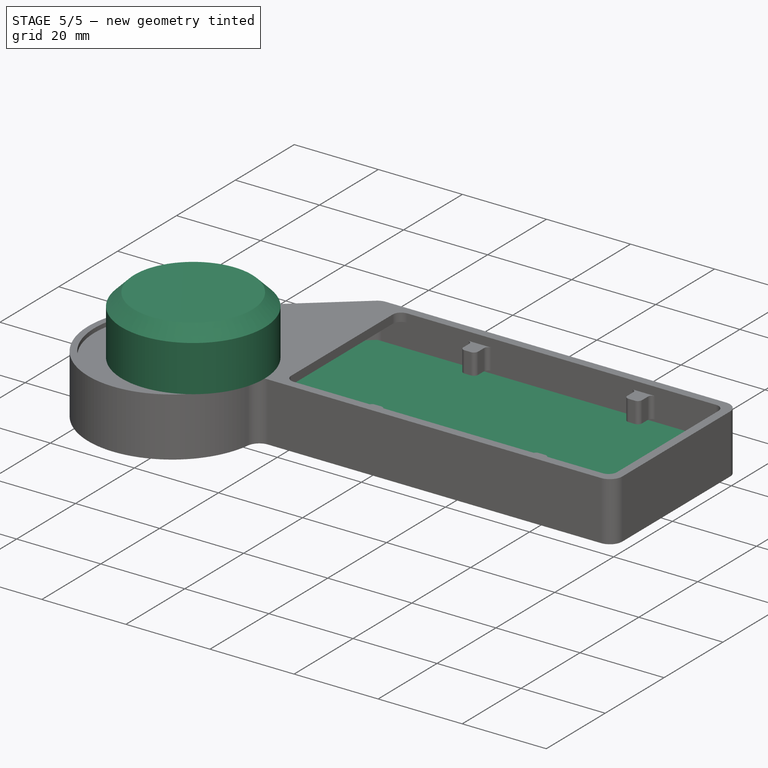
[diagram: stage 5 of 5 — iso view after this stage's code; geometry added in this stage tinted green]
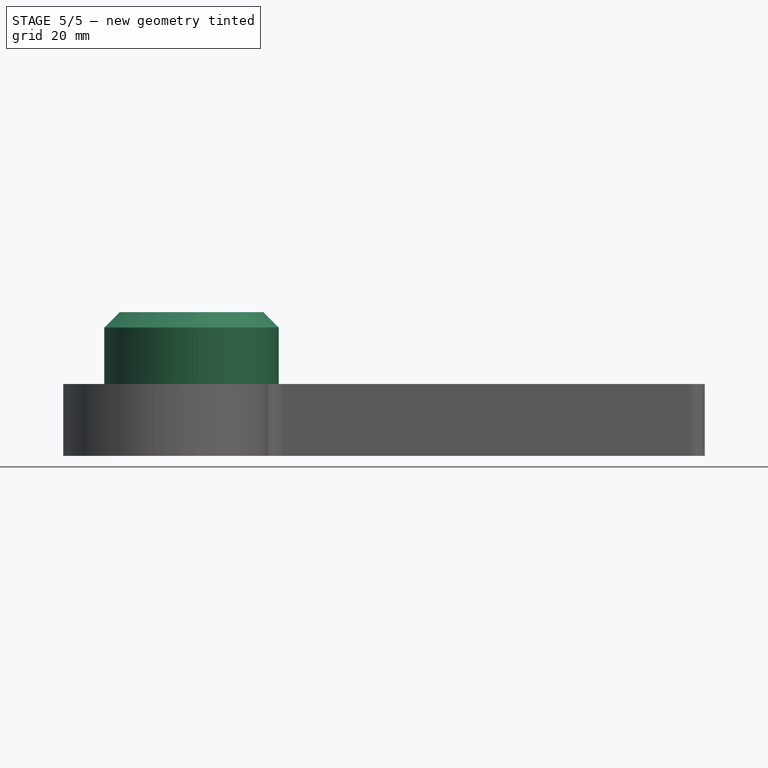
[diagram: stage 5 of 5 — front view after this stage's code; geometry added in this stage tinted green]
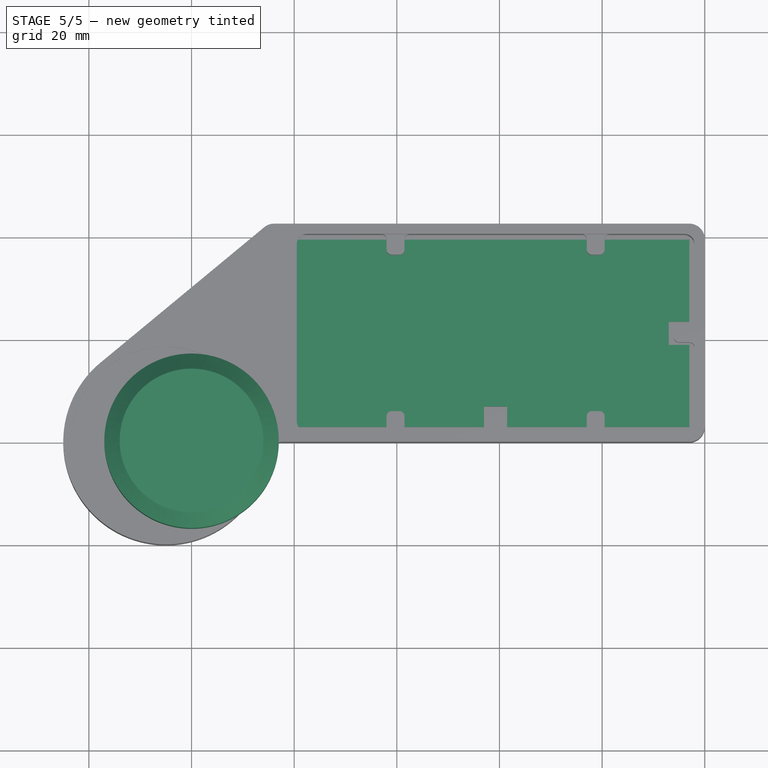
[diagram: stage 5 of 5 — top view after this stage's code; geometry added in this stage tinted green]
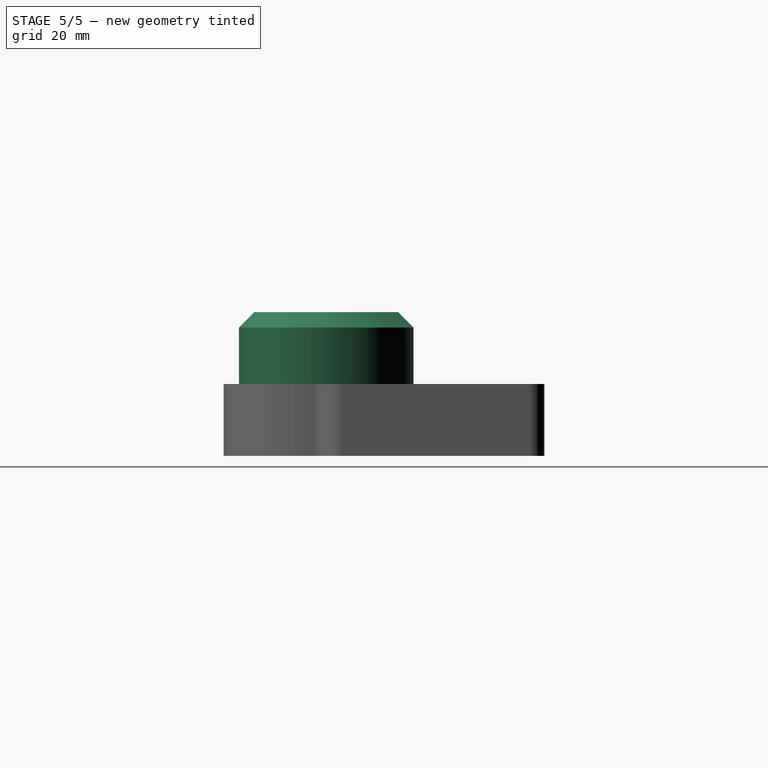
[diagram: stage 5 of 5 — right view after this stage's code; geometry added in this stage tinted green]
FEATURE [Sketcher::SketchObject] Sketch009  label="pcb-dim"
  MapMode = 5
  Placement = pos=(0,0,5.5) rot=(1,0,0;3.14159rad)
  sketch-geometry (19):
    g0: ArcOfCircle CenterX=-105 CenterY=0 CenterZ=0 NormalX=0 NormalY=0 NormalZ=1 AngleXU=0 Radius=17 StartAngle=2.35792 EndAngle=4.01426
    g1: LineSegment StartX=-83.8289 StartY=-39.5 StartZ=0 EndX=-3 EndY=-39.5 EndZ=0
    g2: LineSegment StartX=-117.042 StartY=12 StartZ=0 EndX=-92.9584 EndY=12 EndZ=0
    g3: ArcOfCircle CenterX=-105 CenterY=0 CenterZ=0 NormalX=0 NormalY=0 NormalZ=1 AngleXU=0 Radius=17 StartAngle=0 EndAngle=0.783668
    g4: LineSegment StartX=-115.927 StartY=-13.0228 StartZ=0 EndX=-100.462 EndY=-26 EndZ=0
    g5: LineSegment StartX=-100.462 StartY=-26 StartZ=0 EndX=-88 EndY=-26 EndZ=0
    g6: LineSegment StartX=-88 StartY=-26 StartZ=0 EndX=-88 EndY=-36 EndZ=0
    g7: LineSegment StartX=-88 StartY=-36 StartZ=0 EndX=-83.8289 EndY=-39.5 EndZ=0
    g8: LineSegment StartX=-3 StartY=-3 StartZ=0 EndX=-3 EndY=-19 EndZ=0
    g9: LineSegment StartX=-3 StartY=-19 StartZ=0 EndX=-7 EndY=-19 EndZ=0
    g10: LineSegment StartX=-7 StartY=-19 StartZ=0 EndX=-7 EndY=-23.5 EndZ=0
    g11: LineSegment StartX=-7 StartY=-23.5 StartZ=0 EndX=-3 EndY=-23.5 EndZ=0
    g12: LineSegment StartX=-3 StartY=-23.5 StartZ=0 EndX=-3 EndY=-39.5 EndZ=0
    g13: LineSegment StartX=-43 StartY=-3 StartZ=0 EndX=-43 EndY=-7 EndZ=0
    g14: LineSegment StartX=-43 StartY=-7 StartZ=0 EndX=-38.5 EndY=-7 EndZ=0
    g15: LineSegment StartX=-38.5 StartY=-7 StartZ=0 EndX=-38.5 EndY=-3 EndZ=0
    g16: LineSegment StartX=-38.5 StartY=-3 StartZ=0 EndX=-3 EndY=-3 EndZ=0
    g17: LineSegment StartX=-88 StartY=0 StartZ=0 EndX=-88 EndY=-3 EndZ=0
    g18: LineSegment StartX=-88 StartY=-3 StartZ=0 EndX=-43 EndY=-3 EndZ=0
  constraints (57):
    c: PointOnObject(g0,g-1)
    c: Horizontal(g1)
    c: DistanceY(g1,g-1) = 39.5
    c: Radius(g0) = 17
    c: DistanceX(g0,g-1) = 105
    c: DistanceX(g8,g-1) = 3
    c: DistanceY(g8,g-1) = 3
    c: Coincident(g2,g0)
    c: Horizontal(g2)
    c: Coincident(g3,g0)
    c: Coincident(g3,g2)
    c: Radius(g3) = 17
    c: DistanceY(g0,g2) = 12
    c: Horizontal(g5)
    c: Coincident(g6,g5)
    c: Vertical(g6)
    c: Coincident(g7,g6)
    c: Coincident(g7,g1)
    c: Angle(g7) = -0.698132
    c: Angle(g4) = -0.698132
    c: Tangent(g4,g0) = -1.5708
    c: DistanceY(g5,g-1) = 26
    c: Coincident(g4,g5)
    c: DistanceX(g5,g-1) = 88
    c: DistanceY(g6,g5) = 10
    c: Vertical(g8)
    c: Coincident(g9,g8)
    c: Horizontal(g9)
    c: Vertical(g10)
    c: Coincident(g11,g10)
    c: Horizontal(g11)
    c: Coincident(g12,g11)
    c: Coincident(g12,g1)
    c: Vertical(g12)
    c: DistanceY(g8,g8) = 16
    c: DistanceY(g12,g12) = 16
    c: Coincident(g10,g9)
    c: DistanceX(g11,g11) = 4
    c: Equal(g9,g11)
    c: Vertical(g13)
    c: Horizontal(g14)
    c: Vertical(g15)
    c: Coincident(g16,g15)
    c: Coincident(g16,g8)
    c: Horizontal(g16)
    c: DistanceX(g14,g14) = 4.5
    c: DistanceY(g15,g15) = 4
    c: Coincident(g14,g15)
    c: Coincident(g13,g14)
    c: DistanceX(g16,g16) = 35.5
    c: DistanceY(g13,g-1) = 3
    c: Coincident(g17,g3)
    c: Vertical(g17)
    c: Coincident(g18,g17)
    c: Horizontal(g18)
    c: Coincident(g13,g18)
    c: DistanceY(g17,g17) = 3
FEATURE [PartDesign::Pad] Pad001
  Length = 1.5
  Length2 = 100
  Placement = pos=(0,0,5.5) rot=(1,0,0;3.14159rad)
  Profile = -> Sketch009
  Reversed = true
  Type = 0
FEATURE [Part::Feature] Part__Feature  label="encoder-EC11N1525404"
  Placement = pos=(-100,0,26.5) rot=(0,0,1;0rad)
  shape: bbox 15.08 x 13.1 x 23 mm, 574 faces (baked)
FEATURE [PartDesign::ShapeBinder] CopyPocket008
  Placement = pos=(0,0,1) rot=(0,0,1;0rad)
  TraceSupport = false
FEATURE [Sketcher::SketchObject] Sketch017
  MapMode = 5
  Placement = pos=(0,0,14) rot=(0,0,1;0rad)
  Support = -> [CopyPocket008]
  sketch-geometry (1):
    g0: Circle CenterX=-100 CenterY=0 CenterZ=0 NormalX=0 NormalY=0 NormalZ=1 AngleXU=0 Radius=17
  constraints (3):
    c: PointOnObject(g0,g-1)
    c: Radius(g0) = 17
    c: DistanceX(g0,g-1) = 100
FEATURE [PartDesign::Pad] Pad003
  Length = 14
  Length2 = 100
  Placement = pos=(0,0,1) rot=(0,0,1;0rad)
  Profile = -> Sketch017
  Type = 0
FEATURE [PartDesign::Chamfer] Chamfer
  Base = -> Pad003 [Edge3]
  BaseFeature = -> Pad003
  Placement = pos=(0,0,1) rot=(0,0,1;0rad)
  Size = 3
FEATURE [PartDesign::Fillet] Fillet004
  Base = -> Fillet003 [Edge117,Edge118,Edge115,Edge120]
  BaseFeature = -> Fillet003
  Radius = 1
FEATURE [PartDesign::Fillet] Fillet005
  Base = -> Fillet004 [Edge30,Edge31,Edge32]
  BaseFeature = -> Fillet004
  Radius = 1
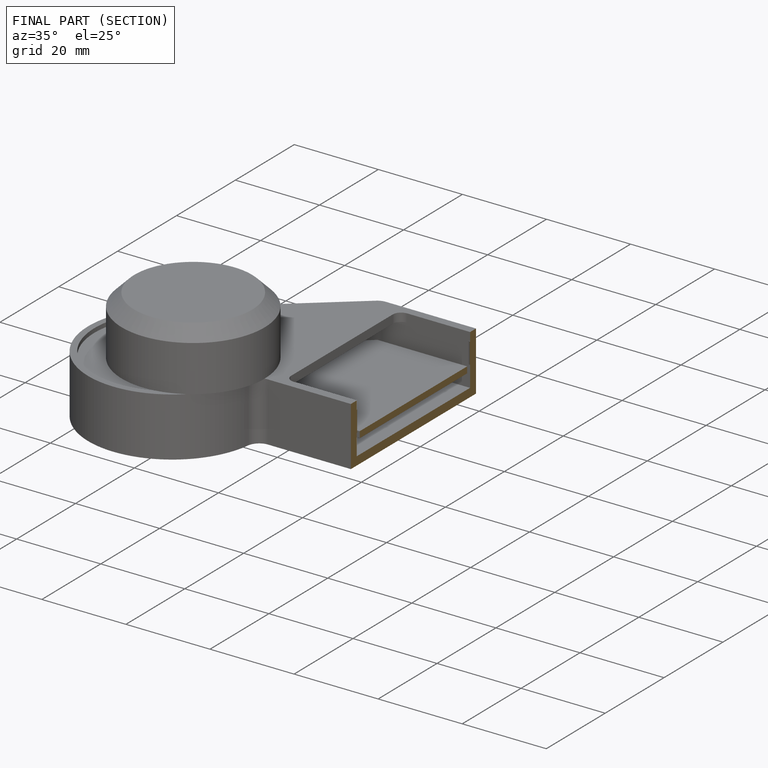
[diagram: finished part — half-section view (interior)]
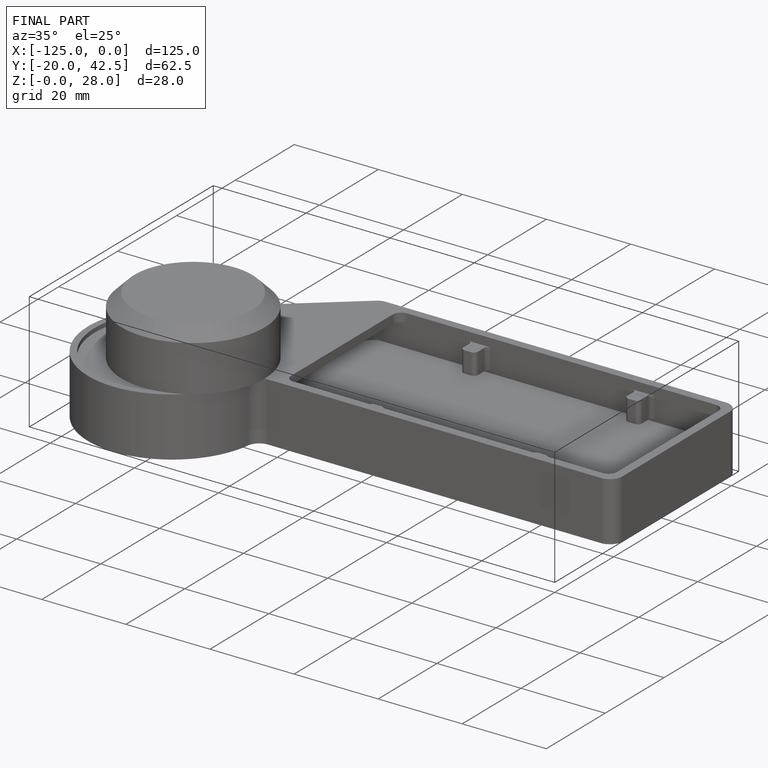
[diagram: finished part — iso view with bounding-box wireframe]
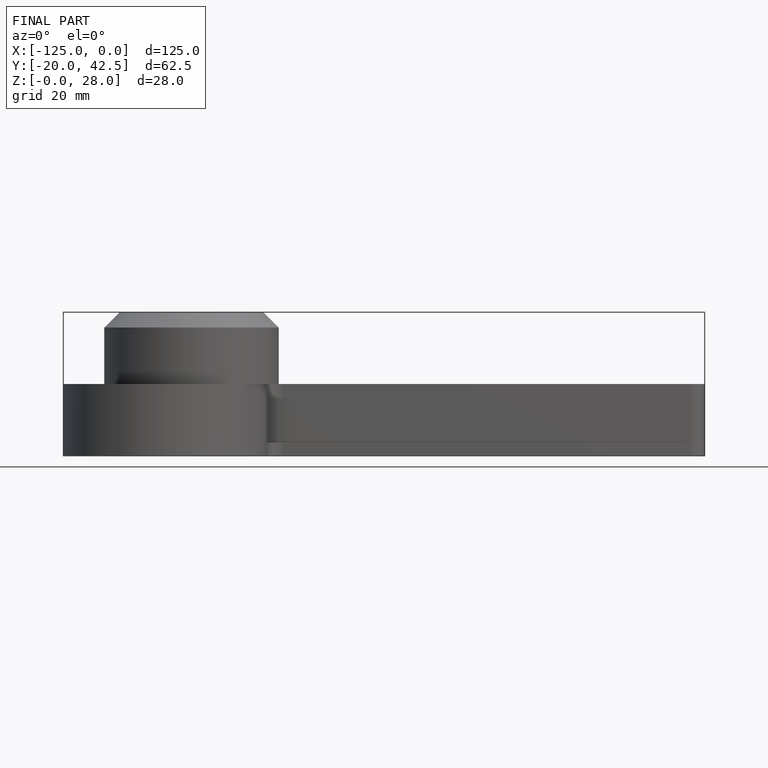
[diagram: finished part — front view with bounding-box wireframe]
